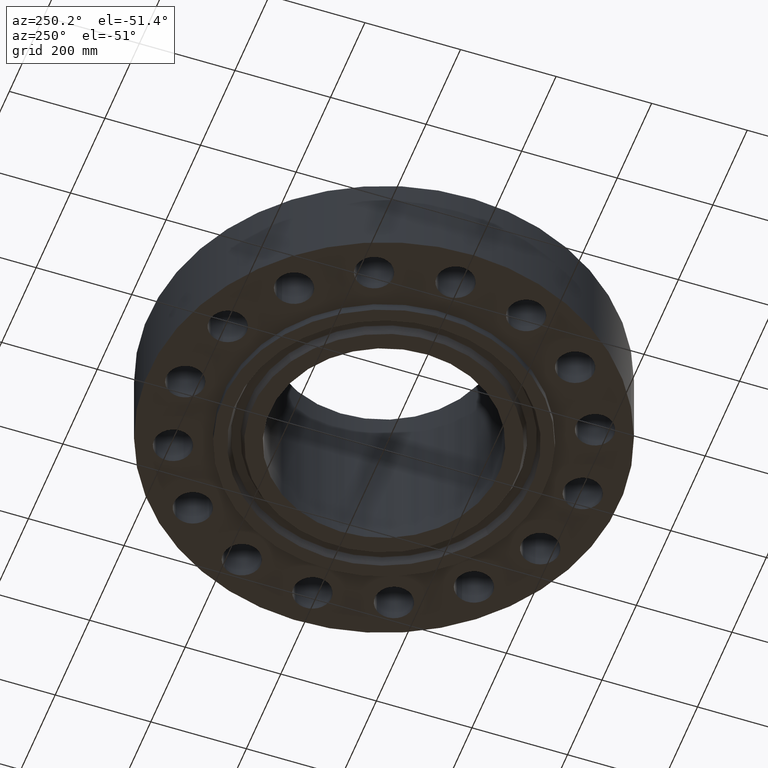
[diagram: clean part render]
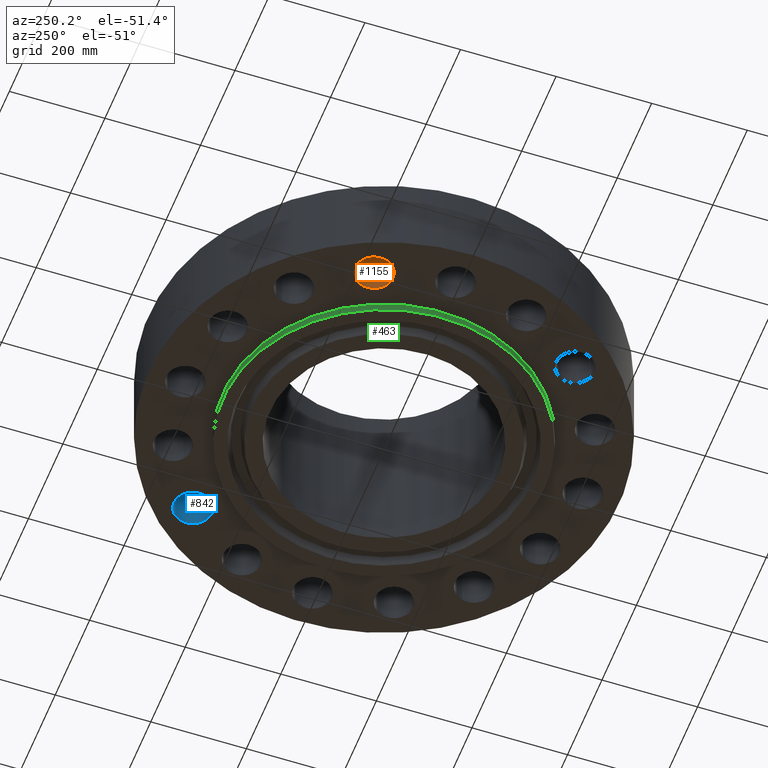
[diagram: same view with three faces highlighted in distinct colors, each labeled with its STEP entity id]
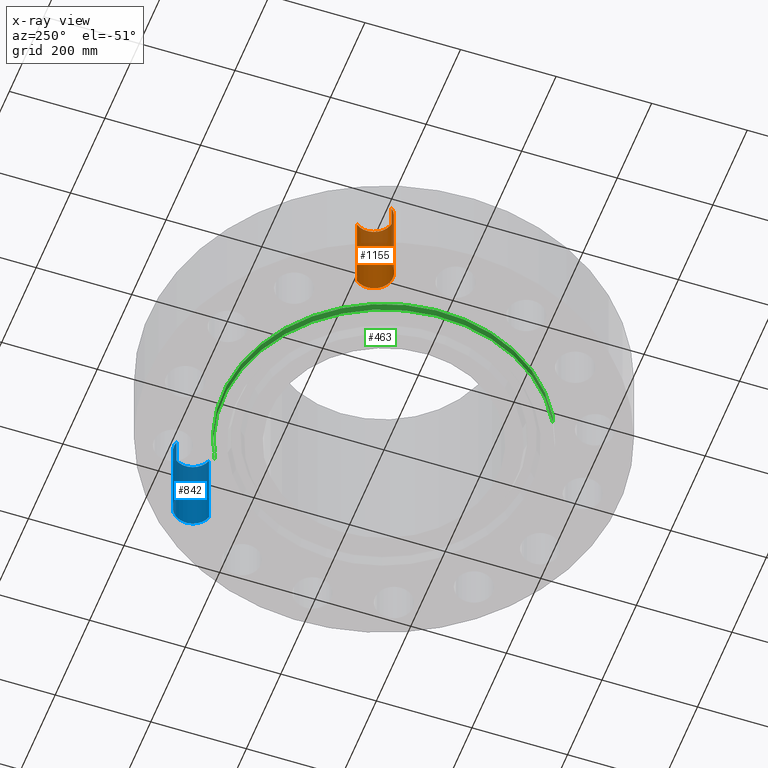
[diagram: x-ray of the same camera — body ghosted, the three highlighted faces saturated]
A machine part, auxiliary view with three faces highlighted in distinct colors.
The next image is the same camera in x-ray (body ghosted, the three faces saturated) — at least one of them is partly hidden behind the body in this view.
Their STEP definitions:

[orange] entity #1155 — the highlighted cylindrical surface (edge-blend (fillet) strip) has radius 39.624 mm, axis along (0, 0, -1).
#725=AXIS2_PLACEMENT_3D('Circle Axis2P3D',#723,#724,$) ;
#1116=AXIS2_PLACEMENT_3D('Cylinder Axis2P3D',#1113,#1114,#1115) ;
#1146=AXIS2_PLACEMENT_3D('Circle Axis2P3D',#1144,#1145,$) ;
#718=CARTESIAN_POINT('Vertex',(-16.3434050341,5.2878339291,0.)) ;
#720=CARTESIAN_POINT('Vertex',(-13.9136496558,7.2450484809,-6.71378962923E-015)) ;
#723=CARTESIAN_POINT('Axis2P3D Location',(-15.1285273449,6.266441205,0.)) ;
#1113=CARTESIAN_POINT('Axis2P3D Location',(-15.1285273449,6.266441205,6.99606299215)) ;
#1118=CARTESIAN_POINT('Line Origine',(-16.3434050341,5.2878339291,3.50000000001)) ;
#1122=CARTESIAN_POINT('Vertex',(-16.3434050341,5.2878339291,7.00000000003)) ;
#1125=CARTESIAN_POINT('Line Origine',(-13.9136496558,7.2450484809,3.50000000001)) ;
#1129=CARTESIAN_POINT('Vertex',(-13.9136496558,7.2450484809,7.00000000003)) ;
#1144=CARTESIAN_POINT('Axis2P3D Location',(-15.1285273449,6.266441205,7.00000000003)) ;
#724=DIRECTION('Axis2P3D Direction',(0.,0.,-0.0393700787402)) ;
#1114=DIRECTION('Axis2P3D Direction',(0.,0.,-0.0393700787402)) ;
#1115=DIRECTION('Axis2P3D XDirection',(0.030660147616,0.0246973368639,0.)) ;
#1119=DIRECTION('Vector Direction',(0.,0.,-0.0393700787402)) ;
#1126=DIRECTION('Vector Direction',(0.,0.,-0.0393700787402)) ;
#1145=DIRECTION('Axis2P3D Direction',(0.,0.,-0.0393700787402)) ;
#1120=VECTOR('Line Direction',#1119,0.0393700787402) ;
#1127=VECTOR('Line Direction',#1126,0.0393700787402) ;
#1150=ORIENTED_EDGE('',*,*,#1131,.F.) ;
#1151=ORIENTED_EDGE('',*,*,#727,.T.) ;
#1152=ORIENTED_EDGE('',*,*,#1124,.T.) ;
#1153=ORIENTED_EDGE('',*,*,#1148,.F.) ;
#1155=ADVANCED_FACE('PartBody',(#1154),#1117,.F.) ;
#726=CIRCLE('generated circle',#725,1.56000000001) ;
#1147=CIRCLE('generated circle',#1146,1.56000000001) ;
#1117=CYLINDRICAL_SURFACE('generated cylinder',#1116,1.56000000001) ;
#727=EDGE_CURVE('',#721,#719,#726,.T.) ;
#1124=EDGE_CURVE('',#719,#1123,#1121,.F.) ;
#1131=EDGE_CURVE('',#721,#1130,#1128,.F.) ;
#1148=EDGE_CURVE('',#1130,#1123,#1147,.T.) ;
#1149=EDGE_LOOP('',(#1150,#1151,#1152,#1153)) ;
#1154=FACE_OUTER_BOUND('',#1149,.T.) ;
#1121=LINE('Line',#1118,#1120) ;
#1128=LINE('Line',#1125,#1127) ;
#719=VERTEX_POINT('',#718) ;
#721=VERTEX_POINT('',#720) ;
#1123=VERTEX_POINT('',#1122) ;
#1130=VERTEX_POINT('',#1129) ;

[blue] entity #842 — the highlighted cylindrical surface (edge-blend (fillet) strip) has radius 39.624 mm, axis along (0, -0, -1).
#518=AXIS2_PLACEMENT_3D('Circle Axis2P3D',#516,#517,$) ;
#815=AXIS2_PLACEMENT_3D('Cylinder Axis2P3D',#812,#813,#814) ;
#833=AXIS2_PLACEMENT_3D('Circle Axis2P3D',#831,#832,$) ;
#516=CARTESIAN_POINT('Axis2P3D Location',(11.578873542,11.578873542,0.)) ;
#520=CARTESIAN_POINT('Vertex',(11.1396718734,13.0757709648,0.)) ;
#522=CARTESIAN_POINT('Vertex',(12.0180752106,10.0819761192,0.)) ;
#812=CARTESIAN_POINT('Axis2P3D Location',(11.578873542,11.578873542,6.99606299215)) ;
#817=CARTESIAN_POINT('Line Origine',(11.1396718734,13.0757709648,3.50000000001)) ;
#821=CARTESIAN_POINT('Vertex',(11.1396718734,13.0757709648,7.00000000003)) ;
#824=CARTESIAN_POINT('Line Origine',(12.0180752106,10.0819761192,3.50000000001)) ;
#828=CARTESIAN_POINT('Vertex',(12.0180752106,10.0819761192,7.00000000003)) ;
#831=CARTESIAN_POINT('Axis2P3D Location',(11.578873542,11.578873542,7.00000000003)) ;
#517=DIRECTION('Axis2P3D Direction',(0.,0.,-0.0393700787402)) ;
#813=DIRECTION('Axis2P3D Direction',(0.,-0.,-0.0393700787402)) ;
#814=DIRECTION('Axis2P3D XDirection',(0.0110842335096,-0.0377775444876,0.)) ;
#818=DIRECTION('Vector Direction',(0.,0.,-0.0393700787402)) ;
#825=DIRECTION('Vector Direction',(0.,0.,-0.0393700787402)) ;
#832=DIRECTION('Axis2P3D Direction',(0.,-0.,-0.0393700787402)) ;
#819=VECTOR('Line Direction',#818,0.0393700787402) ;
#826=VECTOR('Line Direction',#825,0.0393700787402) ;
#837=ORIENTED_EDGE('',*,*,#823,.F.) ;
#838=ORIENTED_EDGE('',*,*,#524,.T.) ;
#839=ORIENTED_EDGE('',*,*,#830,.T.) ;
#840=ORIENTED_EDGE('',*,*,#835,.F.) ;
#842=ADVANCED_FACE('PartBody',(#841),#816,.F.) ;
#519=CIRCLE('generated circle',#518,1.56000000001) ;
#834=CIRCLE('generated circle',#833,1.56000000001) ;
#816=CYLINDRICAL_SURFACE('generated cylinder',#815,1.56000000001) ;
#524=EDGE_CURVE('',#521,#523,#519,.T.) ;
#823=EDGE_CURVE('',#521,#822,#820,.F.) ;
#830=EDGE_CURVE('',#523,#829,#827,.F.) ;
#835=EDGE_CURVE('',#822,#829,#834,.T.) ;
#836=EDGE_LOOP('',(#837,#838,#839,#840)) ;
#841=FACE_OUTER_BOUND('',#836,.T.) ;
#820=LINE('Line',#817,#819) ;
#827=LINE('Line',#824,#826) ;
#521=VERTEX_POINT('',#520) ;
#523=VERTEX_POINT('',#522) ;
#822=VERTEX_POINT('',#821) ;
#829=VERTEX_POINT('',#828) ;

[green] entity #463 — the highlighted cylindrical surface (partial cylindrical patch) has radius 336.55 mm, axis along (0, 0, -1).
#427=AXIS2_PLACEMENT_3D('Cylinder Axis2P3D',#424,#425,#426) ;
#431=AXIS2_PLACEMENT_3D('Circle Axis2P3D',#429,#430,$) ;
#447=AXIS2_PLACEMENT_3D('Circle Axis2P3D',#445,#446,$) ;
#424=CARTESIAN_POINT('Axis2P3D Location',(0.,0.,6.65600000003)) ;
#429=CARTESIAN_POINT('Axis2P3D Location',(0.,0.,-0.688000000003)) ;
#433=CARTESIAN_POINT('Vertex',(-6.35238838653,-11.6279689451,-0.688000000003)) ;
#435=CARTESIAN_POINT('Vertex',(6.35238838653,11.6279689451,-0.688000000003)) ;
#438=CARTESIAN_POINT('Line Origine',(-6.35238838653,-11.6279689451,-0.344000000001)) ;
#442=CARTESIAN_POINT('Vertex',(-6.35238838653,-11.6279689451,0.)) ;
#445=CARTESIAN_POINT('Axis2P3D Location',(0.,0.,1.1189649382E-015)) ;
#449=CARTESIAN_POINT('Vertex',(6.35238838653,11.6279689451,0.)) ;
#452=CARTESIAN_POINT('Line Origine',(6.35238838653,11.6279689451,-0.344000000001)) ;
#425=DIRECTION('Axis2P3D Direction',(0.,0.,-0.0393700787402)) ;
#426=DIRECTION('Axis2P3D XDirection',(0.0188750212049,0.0345504945626,0.)) ;
#430=DIRECTION('Axis2P3D Direction',(0.,0.,-0.0393700787402)) ;
#439=DIRECTION('Vector Direction',(0.,0.,-0.0393700787402)) ;
#446=DIRECTION('Axis2P3D Direction',(0.,0.,-0.0393700787402)) ;
#453=DIRECTION('Vector Direction',(0.,0.,-0.0393700787402)) ;
#440=VECTOR('Line Direction',#439,0.0393700787402) ;
#454=VECTOR('Line Direction',#453,0.0393700787402) ;
#458=ORIENTED_EDGE('',*,*,#437,.F.) ;
#459=ORIENTED_EDGE('',*,*,#444,.T.) ;
#460=ORIENTED_EDGE('',*,*,#451,.T.) ;
#461=ORIENTED_EDGE('',*,*,#456,.F.) ;
#463=ADVANCED_FACE('PartBody',(#462),#428,.T.) ;
#432=CIRCLE('generated circle',#431,13.2500000001) ;
#448=CIRCLE('generated circle',#447,13.2500000001) ;
#428=CYLINDRICAL_SURFACE('generated cylinder',#427,13.2500000001) ;
#437=EDGE_CURVE('',#434,#436,#432,.T.) ;
#444=EDGE_CURVE('',#434,#443,#441,.F.) ;
#451=EDGE_CURVE('',#443,#450,#448,.T.) ;
#456=EDGE_CURVE('',#436,#450,#455,.F.) ;
#457=EDGE_LOOP('',(#458,#459,#460,#461)) ;
#462=FACE_OUTER_BOUND('',#457,.T.) ;
#441=LINE('Line',#438,#440) ;
#455=LINE('Line',#452,#454) ;
#434=VERTEX_POINT('',#433) ;
#436=VERTEX_POINT('',#435) ;
#443=VERTEX_POINT('',#442) ;
#450=VERTEX_POINT('',#449) ;